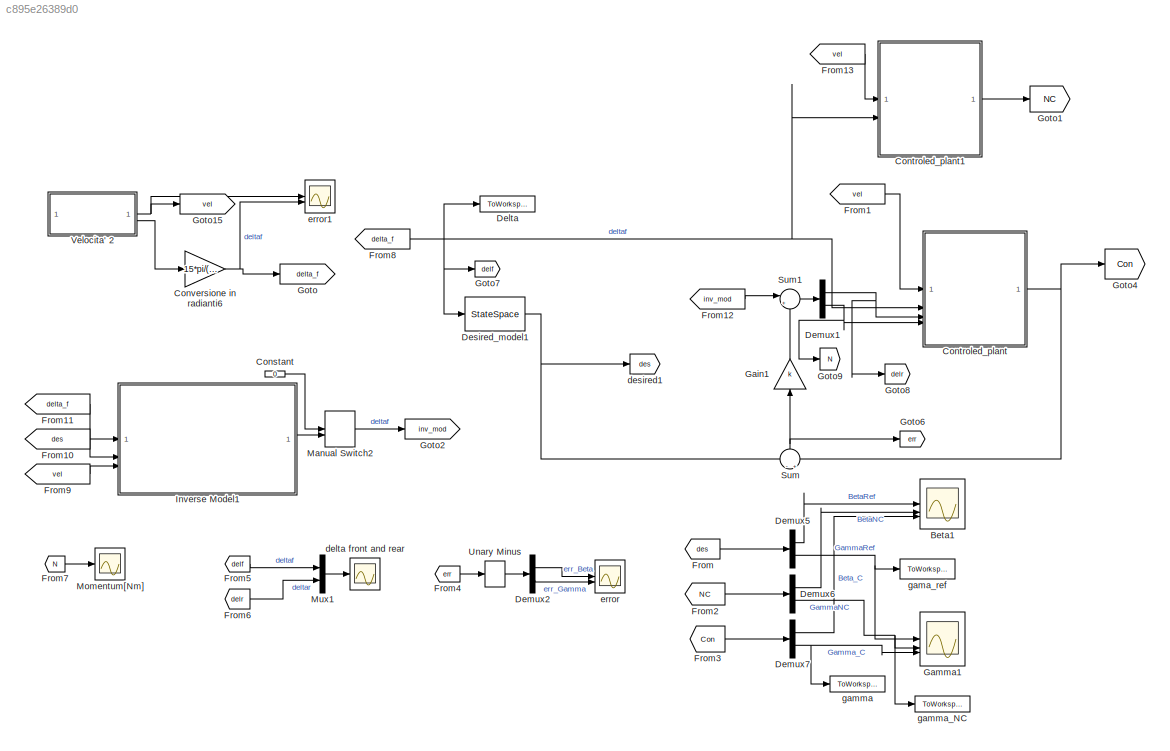
MODEL slx_c895e26389d0
KIND model
CONFIG AbsTol = auto
CONFIG EnableMultiTasking = off
CONFIG FixedStep = auto
CONFIG MaxStep = auto
CONFIG MinStep = auto
CONFIG RelTol = 1e-3
CONFIG SampleTimeConstraint = Unconstrained
CONFIG SolverName = VariableStepAuto
CONFIG StartTime = 0.0
CONFIG StopTime = 30
BLOCK [Scope] Beta1
  Floating = off
  NumInputPorts = 3
  ScopeSpecificationString = Simulink.scopes.TimeScopeBlockCfg('CurrentConfiguration', extmgr.ConfigurationSet(extmgr.Configuration('Core','General UI',true,'FigureColor',[1 1 1]),extmgr.Configuration('Core','Source UI',true),extmgr.Configuration('Sources','WiredSimulink',true,'DataLoggingVariableName','ScopeData1'),extmgr.Configuration('Visuals','Time Domain',true,'SerializedDisplays',{struct('MinYLimReal','-0.00742','MaxYLi...<+1806ch>
BLOCK [Constant] Constant
  Value = 0
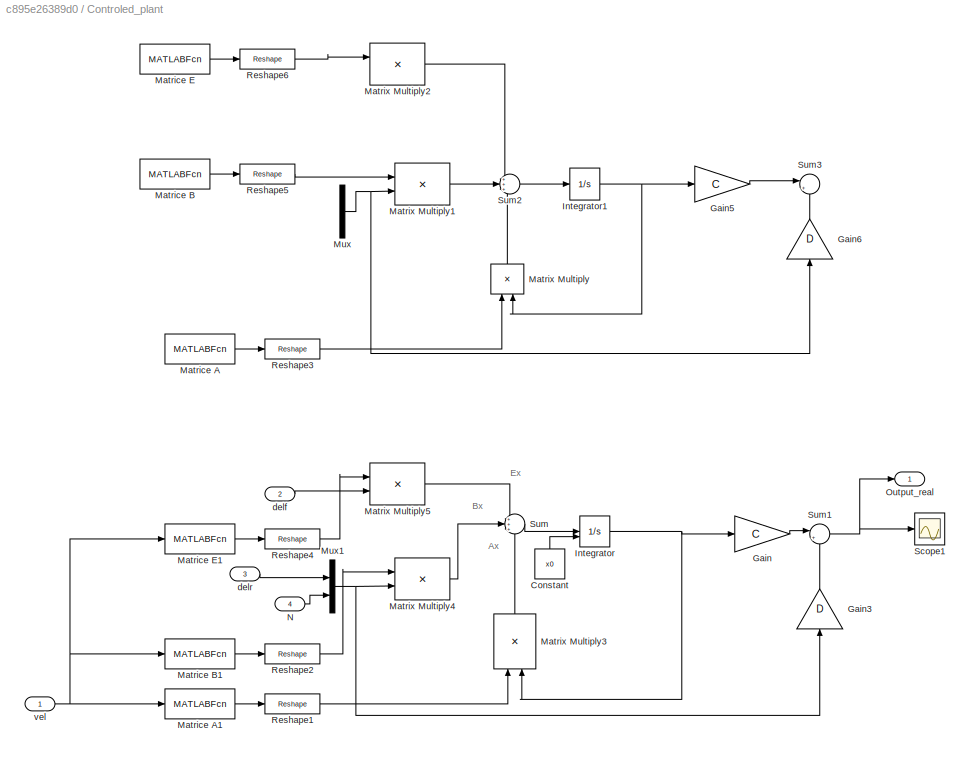
BLOCK [SubSystem] Controled_plant
BLOCK [Constant] Controled_plant/Constant
  NameLocation = right
  Value = x0
BLOCK [Gain] Controled_plant/Gain
  Gain = C
  Multiplication = Matrix(K*u)
BLOCK [Gain] Controled_plant/Gain3
  Gain = D
  Multiplication = Matrix(K*u)
  NameLocation = right
BLOCK [Gain] Controled_plant/Gain5
  Commented = on
  Gain = C
  Multiplication = Matrix(K*u)
BLOCK [Gain] Controled_plant/Gain6
  Commented = on
  Gain = D
  Multiplication = Matrix(K*u)
  NameLocation = right
BLOCK [Integrator] Controled_plant/Integrator
  InitialConditionSource = external
BLOCK [Integrator] Controled_plant/Integrator1
  Commented = on
  InitialCondition = x0
BLOCK [MATLABFcn] Controled_plant/Matrice A
  Commented = on
  MATLABFcn = calc_A(u(1))
BLOCK [MATLABFcn] Controled_plant/Matrice A1
  MATLABFcn = calc_A(u(1))
BLOCK [MATLABFcn] Controled_plant/Matrice B
  Commented = on
  MATLABFcn = calc_B(u(1))
BLOCK [MATLABFcn] Controled_plant/Matrice B1
  MATLABFcn = calc_B(u(1))
BLOCK [MATLABFcn] Controled_plant/Matrice E
  Commented = on
  MATLABFcn = calc_E(u(1))
BLOCK [MATLABFcn] Controled_plant/Matrice E1
  MATLABFcn = calc_E(u(1))
BLOCK [Product] Controled_plant/Matrix Multiply
  Commented = on
  Multiplication = Matrix(*)
  NameLocation = right
BLOCK [Product] Controled_plant/Matrix Multiply1
  Commented = on
  Multiplication = Matrix(*)
BLOCK [Product] Controled_plant/Matrix Multiply2
  Commented = on
  Multiplication = Matrix(*)
BLOCK [Product] Controled_plant/Matrix Multiply3
  Multiplication = Matrix(*)
  NameLocation = right
BLOCK [Product] Controled_plant/Matrix Multiply4
  Multiplication = Matrix(*)
BLOCK [Product] Controled_plant/Matrix Multiply5
  Multiplication = Matrix(*)
BLOCK [Mux] Controled_plant/Mux
  Commented = on
  DisplayOption = bar
  Inputs = 2
BLOCK [Mux] Controled_plant/Mux1
  DisplayOption = bar
  Inputs = 2
BLOCK [Inport] Controled_plant/N
  Port = 4
BLOCK [Outport] Controled_plant/Output_real
BLOCK [Reshape] Controled_plant/Reshape1
  OutputDimensionality = Customize
  OutputDimensions = [2,2]
BLOCK [Reshape] Controled_plant/Reshape2
  OutputDimensionality = Customize
  OutputDimensions = [2,2]
BLOCK [Reshape] Controled_plant/Reshape3
  Commented = on
  OutputDimensionality = Customize
  OutputDimensions = [2,2]
BLOCK [Reshape] Controled_plant/Reshape4
  OutputDimensionality = Customize
  OutputDimensions = [2,1]
BLOCK [Reshape] Controled_plant/Reshape5
  Commented = on
  OutputDimensionality = Customize
  OutputDimensions = [2,2]
BLOCK [Reshape] Controled_plant/Reshape6
  Commented = on
  OutputDimensionality = Customize
  OutputDimensions = [2,1]
BLOCK [Scope] Controled_plant/Scope1
  Floating = off
  NumInputPorts = 1
  ScopeSpecificationString = Simulink.scopes.TimeScopeBlockCfg('CurrentConfiguration', extmgr.ConfigurationSet(extmgr.Configuration('Core','General UI',true),extmgr.Configuration('Core','Source UI',true),extmgr.Configuration('Sources','WiredSimulink',true,'DataLoggingVariableName','ScopeData1'),extmgr.Configuration('Visuals','Time Domain',true,'SerializedDisplays',{struct('MinYLimReal','-0.27207','MaxYLimReal','0.41256','YLab...<+1374ch>
BLOCK [Sum] Controled_plant/Sum
  Inputs = +++
BLOCK [Sum] Controled_plant/Sum1
  Inputs = |++
BLOCK [Sum] Controled_plant/Sum2
  Commented = on
  Inputs = +++
BLOCK [Sum] Controled_plant/Sum3
  Commented = on
  Inputs = |++
BLOCK [Inport] Controled_plant/delf
  Port = 2
BLOCK [Inport] Controled_plant/delr
  Port = 3
BLOCK [Inport] Controled_plant/vel
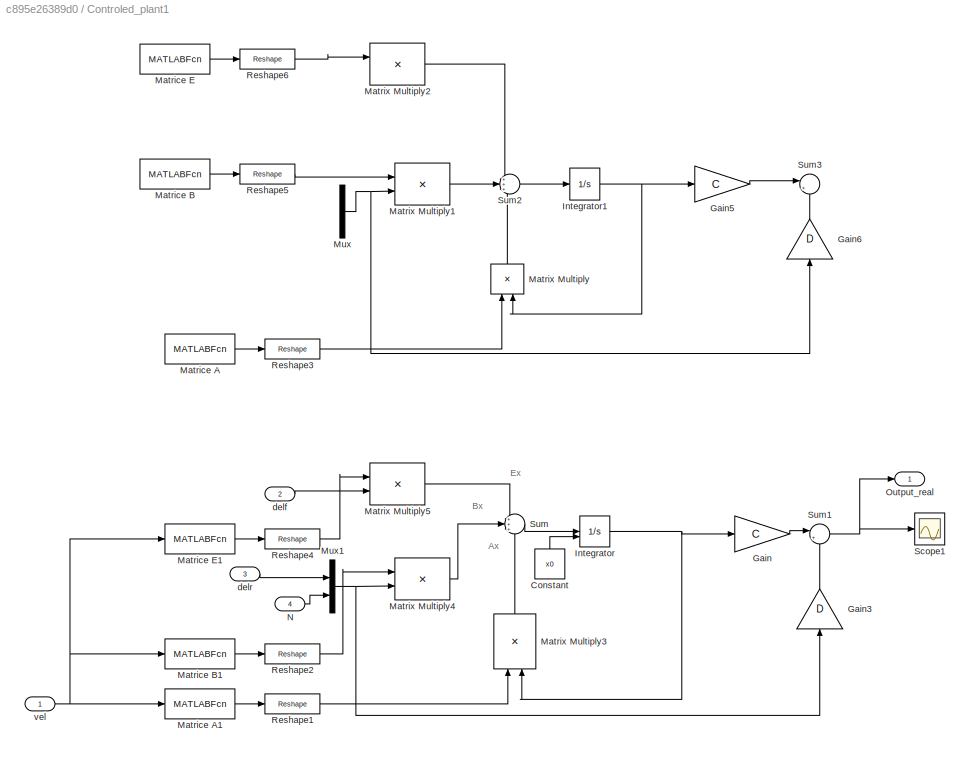
BLOCK [SubSystem] Controled_plant1
BLOCK [Constant] Controled_plant1/Constant
  NameLocation = right
  Value = x0
BLOCK [Gain] Controled_plant1/Gain
  Gain = C
  Multiplication = Matrix(K*u)
BLOCK [Gain] Controled_plant1/Gain3
  Gain = D
  Multiplication = Matrix(K*u)
  NameLocation = right
BLOCK [Gain] Controled_plant1/Gain5
  Commented = on
  Gain = C
  Multiplication = Matrix(K*u)
BLOCK [Gain] Controled_plant1/Gain6
  Commented = on
  Gain = D
  Multiplication = Matrix(K*u)
  NameLocation = right
BLOCK [Integrator] Controled_plant1/Integrator
  InitialConditionSource = external
BLOCK [Integrator] Controled_plant1/Integrator1
  Commented = on
  InitialCondition = x0
BLOCK [MATLABFcn] Controled_plant1/Matrice A
  Commented = on
  MATLABFcn = calc_A(u(1))
BLOCK [MATLABFcn] Controled_plant1/Matrice A1
  MATLABFcn = calc_A(u(1))
BLOCK [MATLABFcn] Controled_plant1/Matrice B
  Commented = on
  MATLABFcn = calc_B(u(1))
BLOCK [MATLABFcn] Controled_plant1/Matrice B1
  MATLABFcn = calc_B(u(1))
BLOCK [MATLABFcn] Controled_plant1/Matrice E
  Commented = on
  MATLABFcn = calc_E(u(1))
BLOCK [MATLABFcn] Controled_plant1/Matrice E1
  MATLABFcn = calc_E(u(1))
BLOCK [Product] Controled_plant1/Matrix Multiply
  Commented = on
  Multiplication = Matrix(*)
  NameLocation = right
BLOCK [Product] Controled_plant1/Matrix Multiply1
  Commented = on
  Multiplication = Matrix(*)
BLOCK [Product] Controled_plant1/Matrix Multiply2
  Commented = on
  Multiplication = Matrix(*)
BLOCK [Product] Controled_plant1/Matrix Multiply3
  Multiplication = Matrix(*)
  NameLocation = right
BLOCK [Product] Controled_plant1/Matrix Multiply4
  Multiplication = Matrix(*)
BLOCK [Product] Controled_plant1/Matrix Multiply5
  Multiplication = Matrix(*)
BLOCK [Mux] Controled_plant1/Mux
  Commented = on
  DisplayOption = bar
  Inputs = 2
BLOCK [Mux] Controled_plant1/Mux1
  DisplayOption = bar
  Inputs = 2
BLOCK [Inport] Controled_plant1/N
  Port = 4
BLOCK [Outport] Controled_plant1/Output_real
BLOCK [Reshape] Controled_plant1/Reshape1
  OutputDimensionality = Customize
  OutputDimensions = [2,2]
BLOCK [Reshape] Controled_plant1/Reshape2
  OutputDimensionality = Customize
  OutputDimensions = [2,2]
BLOCK [Reshape] Controled_plant1/Reshape3
  Commented = on
  OutputDimensionality = Customize
  OutputDimensions = [2,2]
BLOCK [Reshape] Controled_plant1/Reshape4
  OutputDimensionality = Customize
  OutputDimensions = [2,1]
BLOCK [Reshape] Controled_plant1/Reshape5
  Commented = on
  OutputDimensionality = Customize
  OutputDimensions = [2,2]
BLOCK [Reshape] Controled_plant1/Reshape6
  Commented = on
  OutputDimensionality = Customize
  OutputDimensions = [2,1]
BLOCK [Scope] Controled_plant1/Scope1
  Floating = off
  NumInputPorts = 1
  ScopeSpecificationString = Simulink.scopes.TimeScopeBlockCfg('CurrentConfiguration', extmgr.ConfigurationSet(extmgr.Configuration('Core','General UI',true),extmgr.Configuration('Core','Source UI',true),extmgr.Configuration('Sources','WiredSimulink',true,'DataLoggingVariableName','ScopeData1'),extmgr.Configuration('Visuals','Time Domain',true,'SerializedDisplays',{struct('MinYLimReal','-0.27207','MaxYLimReal','0.41256','YLab...<+1374ch>
BLOCK [Sum] Controled_plant1/Sum
  Inputs = +++
BLOCK [Sum] Controled_plant1/Sum1
  Inputs = |++
BLOCK [Sum] Controled_plant1/Sum2
  Commented = on
  Inputs = +++
BLOCK [Sum] Controled_plant1/Sum3
  Commented = on
  Inputs = |++
BLOCK [Inport] Controled_plant1/delf
  Port = 2
BLOCK [Inport] Controled_plant1/delr
  Port = 3
BLOCK [Inport] Controled_plant1/vel
BLOCK [Gain] Conversione in radianti6
  Gain = 15*pi/(180*26.6)
BLOCK [ToWorkspace] Delta
  FixptAsFi = on
  MaxDataPoints = inf
  SampleTime = -1
  SaveFormat = Timeseries
  VariableName = simout
BLOCK [Demux] Demux1
  Outputs = 2
BLOCK [Demux] Demux2
  Outputs = 2
BLOCK [Demux] Demux5
  Outputs = 2
BLOCK [Demux] Demux6
  Outputs = 2
BLOCK [Demux] Demux7
  Outputs = 2
BLOCK [StateSpace] Desired_model1
  A = Ad
  B = Ed
  C = [1,0;0,1]
  D = zeros(2,1)
  InitialCondition = 0
BLOCK [From] From
  GotoTag = des
BLOCK [From] From1
  GotoTag = vel
BLOCK [From] From10
  GotoTag = des
BLOCK [From] From11
  GotoTag = delta_f
BLOCK [From] From12
  GotoTag = inv_mod
BLOCK [From] From13
  GotoTag = vel
BLOCK [From] From2
  GotoTag = NC
BLOCK [From] From3
  GotoTag = Con
BLOCK [From] From4
  GotoTag = err
BLOCK [From] From5
  GotoTag = delf
BLOCK [From] From6
  GotoTag = delr
BLOCK [From] From7
  GotoTag = N
BLOCK [From] From8
  GotoTag = delta_f
BLOCK [From] From9
  GotoTag = vel
BLOCK [Gain] Gain1
  Gain = k
  Multiplication = Matrix(K*u)
  NameLocation = left
BLOCK [Scope] Gamma1
  Floating = off
  NumInputPorts = 3
  ScopeSpecificationString = Simulink.scopes.TimeScopeBlockCfg('CurrentConfiguration', extmgr.ConfigurationSet(extmgr.Configuration('Core','General UI',true,'FigureColor',[1 1 1]),extmgr.Configuration('Core','Source UI',true),extmgr.Configuration('Sources','WiredSimulink',true,'DataLoggingVariableName','ScopeData2'),extmgr.Configuration('Visuals','Time Domain',true,'SerializedDisplays',{struct('MinYLimReal','-0.04617','MaxYLi...<+1800ch>
BLOCK [Goto] Goto
  GotoTag = delta_f
BLOCK [Goto] Goto1
  GotoTag = NC
BLOCK [Goto] Goto15
  GotoTag = vel
BLOCK [Goto] Goto2
  GotoTag = inv_mod
BLOCK [Goto] Goto4
  GotoTag = Con
BLOCK [Goto] Goto6
  GotoTag = err
BLOCK [Goto] Goto7
  GotoTag = delf
BLOCK [Goto] Goto8
  GotoTag = delr
BLOCK [Goto] Goto9
  GotoTag = N
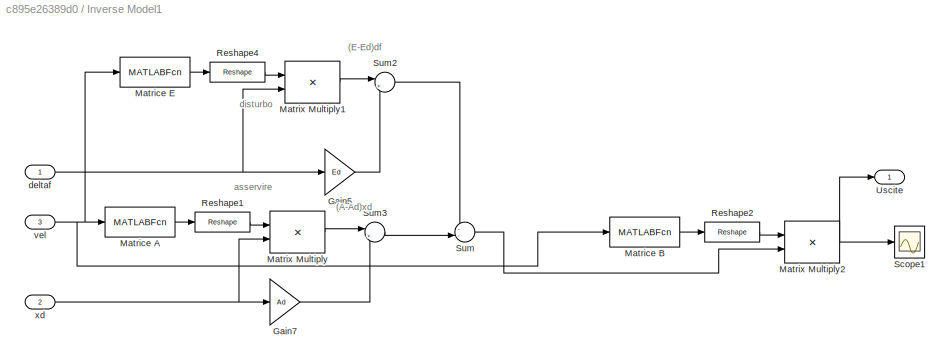
BLOCK [SubSystem] Inverse Model1
BLOCK [Gain] Inverse Model1/Gain5
  Gain = Ed
  Multiplication = Matrix(K*u)
BLOCK [Gain] Inverse Model1/Gain7
  Gain = Ad
  Multiplication = Matrix(K*u)
BLOCK [MATLABFcn] Inverse Model1/Matrice A
  MATLABFcn = calc_A(u(1))
BLOCK [MATLABFcn] Inverse Model1/Matrice B
  MATLABFcn = calc_inv_B(u(1))
BLOCK [MATLABFcn] Inverse Model1/Matrice E
  MATLABFcn = calc_E(u(1))
BLOCK [Product] Inverse Model1/Matrix Multiply
  Multiplication = Matrix(*)
BLOCK [Product] Inverse Model1/Matrix Multiply1
  Multiplication = Matrix(*)
BLOCK [Product] Inverse Model1/Matrix Multiply2
  Multiplication = Matrix(*)
BLOCK [Reshape] Inverse Model1/Reshape1
  OutputDimensionality = Customize
  OutputDimensions = [2,2]
BLOCK [Reshape] Inverse Model1/Reshape2
  OutputDimensionality = Customize
  OutputDimensions = [2,2]
BLOCK [Reshape] Inverse Model1/Reshape4
  OutputDimensionality = Customize
  OutputDimensions = [2,1]
BLOCK [Scope] Inverse Model1/Scope1
  Floating = off
  NumInputPorts = 1
  ScopeSpecificationString = Simulink.scopes.TimeScopeBlockCfg('CurrentConfiguration', extmgr.ConfigurationSet(extmgr.Configuration('Core','General UI',true),extmgr.Configuration('Core','Source UI',true),extmgr.Configuration('Sources','WiredSimulink',true,'DataLoggingVariableName','ScopeData1'),extmgr.Configuration('Visuals','Time Domain',true,'SerializedDisplays',{struct('MinYLimReal','-2938.53975','MaxYLimReal','2937.95788'...<+1566ch>
BLOCK [Sum] Inverse Model1/Sum
  Inputs = --|
BLOCK [Sum] Inverse Model1/Sum2
  Inputs = |+-
BLOCK [Sum] Inverse Model1/Sum3
  Inputs = |+-
BLOCK [Outport] Inverse Model1/Uscite
BLOCK [Inport] Inverse Model1/deltaf
BLOCK [Inport] Inverse Model1/vel
  Port = 3
  PortDimensions = 1
BLOCK [Inport] Inverse Model1/xd
  Port = 2
  PortDimensions = 2
BLOCK [ManualSwitch] Manual Switch2
BLOCK [Scope] Momentum[Nm]
  Floating = off
  NumInputPorts = 1
  ScopeSpecificationString = Simulink.scopes.TimeScopeBlockCfg('CurrentConfiguration', extmgr.ConfigurationSet(extmgr.Configuration('Core','General UI',true,'FigureColor',[1 1 1]),extmgr.Configuration('Core','Source UI',true),extmgr.Configuration('Sources','WiredSimulink',true,'DataLoggingVariableName','ScopeData3'),extmgr.Configuration('Visuals','Time Domain',true,'SerializedDisplays',{struct('MinYLimReal','-1864.35606','Max...<+1662ch>
BLOCK [Mux] Mux1
  DisplayOption = bar
  Inputs = 2
BLOCK [Sum] Sum
  Inputs = -|+
  NameLocation = right
BLOCK [Sum] Sum1
  Inputs = |++
BLOCK [UnaryMinus] Unary Minus
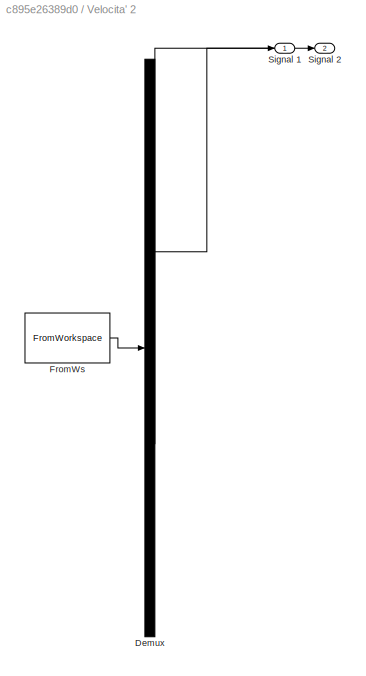
BLOCK [SubSystem] Velocita' 2
  ClipboardFcn = sigbuilder_block('clipboard');
  CloseFcn = sigbuilder_block('close');
  ContinueFcn = sigbuilder_block('continue');
  CopyFcn = sigbuilder_block('copy');
  DeleteFcn = sigbuilder_block('delete');
  LoadFcn = sigbuilder_block('load');
  MaskHideContents = on
  ModelCloseFcn = sigbuilder_block('modelClose');
  NameChangeFcn = sigbuilder_block('namechange');
  OpenFcn = sigbuilder_block('open',[30 192 550.2 343.8 ]);
  PauseFcn = sigbuilder_block('pause');
  PreSaveFcn = sigbuilder_block('preSave');
  StartFcn = sigbuilder_block('start');
  StopFcn = sigbuilder_block('stop');
  Tag = STV Subsys
BLOCK [Demux] Velocita' 2/Demux
  DisplayOption = none
  Outputs = 2
  Tag = STV Demux
BLOCK [FromWorkspace] Velocita' 2/FromWs
  Tag = STV FromWs
  VariableName = tuvar
BLOCK [Outport] Velocita' 2/Signal 1
  Tag = STV Outport
BLOCK [Outport] Velocita' 2/Signal 2
  Port = 2
  Tag = STV Outport
BLOCK [Scope] delta front and rear
  Floating = off
  NumInputPorts = 1
  ScopeSpecificationString = Simulink.scopes.TimeScopeBlockCfg('CurrentConfiguration', extmgr.ConfigurationSet(extmgr.Configuration('Core','General UI',true,'FigureColor',[1 1 1]),extmgr.Configuration('Core','Source UI',true),extmgr.Configuration('Sources','WiredSimulink',true,'DataLoggingVariableName','ScopeData4'),extmgr.Configuration('Visuals','Time Domain',true,'SerializedDisplays',{struct('MinYLimReal','-0.03142','MaxYLi...<+1763ch>
BLOCK [Goto] desired1
  GotoTag = des
BLOCK [Scope] error
  Floating = off
  NumInputPorts = 2
  ScopeSpecificationString = Simulink.scopes.TimeScopeBlockCfg('CurrentConfiguration', extmgr.ConfigurationSet(extmgr.Configuration('Core','General UI',true,'FigureColor',[1 1 1]),extmgr.Configuration('Core','Source UI',true),extmgr.Configuration('Sources','WiredSimulink',true,'DataLoggingVariableName','ScopeData5'),extmgr.Configuration('Visuals','Time Domain',true,'SerializedDisplays',{struct('MinYLimReal','-0.00011','MaxYLi...<+2308ch>
BLOCK [Scope] error1
  Floating = off
  NumInputPorts = 2
  ScopeSpecificationString = Simulink.scopes.TimeScopeBlockCfg('CurrentConfiguration', extmgr.ConfigurationSet(extmgr.Configuration('Core','General UI',true,'FigureColor',[1 1 1]),extmgr.Configuration('Core','Source UI',true),extmgr.Configuration('Sources','WiredSimulink',true,'DataLoggingVariableName','ScopeData2'),extmgr.Configuration('Visuals','Time Domain',true,'SerializedDisplays',{struct('MinYLimReal','45.5','MaxYLimRea...<+2296ch>
BLOCK [ToWorkspace] gama_ref
  FixptAsFi = on
  MaxDataPoints = inf
  SampleTime = -1
  SaveFormat = Timeseries
  VariableName = simout1
BLOCK [ToWorkspace] gamma
  FixptAsFi = on
  MaxDataPoints = inf
  SampleTime = -1
  SaveFormat = Timeseries
  VariableName = simout2
BLOCK [ToWorkspace] gamma_NC
  FixptAsFi = on
  MaxDataPoints = inf
  SampleTime = -1
  SaveFormat = Timeseries
  VariableName = simout3
ANNOTATION Controled_plant: Ax
ANNOTATION Controled_plant: Bx
ANNOTATION Controled_plant: Ex
ANNOTATION Controled_plant1: Ax
ANNOTATION Controled_plant1: Bx
ANNOTATION Controled_plant1: Ex
ANNOTATION Inverse Model1: (A-Ad)xd
ANNOTATION Inverse Model1: (E-Ed)df
ANNOTATION Inverse Model1: asservire
ANNOTATION Inverse Model1: disturbo
LINE Constant:1 -> Manual Switch2:1
LINE Controled_plant/Constant:1 -> Controled_plant/Integrator:2
LINE Controled_plant/Gain3:1 -> Controled_plant/Sum1:2
LINE Controled_plant/Gain5:1 -> Controled_plant/Sum3:1
LINE Controled_plant/Gain6:1 -> Controled_plant/Sum3:2
LINE Controled_plant/Gain:1 -> Controled_plant/Sum1:1
NET Controled_plant/Integrator1:1 -> Controled_plant/Gain5:1, Controled_plant/Matrix Multiply:2
NET Controled_plant/Integrator:1 -> Controled_plant/Gain:1, Controled_plant/Matrix Multiply3:2
LINE Controled_plant/Matrice A1:1 -> Controled_plant/Reshape1:1
LINE Controled_plant/Matrice A:1 -> Controled_plant/Reshape3:1
LINE Controled_plant/Matrice B1:1 -> Controled_plant/Reshape2:1
LINE Controled_plant/Matrice B:1 -> Controled_plant/Reshape5:1
LINE Controled_plant/Matrice E1:1 -> Controled_plant/Reshape4:1
LINE Controled_plant/Matrice E:1 -> Controled_plant/Reshape6:1
LINE Controled_plant/Matrix Multiply1:1 -> Controled_plant/Sum2:2
LINE Controled_plant/Matrix Multiply2:1 -> Controled_plant/Sum2:1
LINE Controled_plant/Matrix Multiply3:1 -> Controled_plant/Sum:3
LINE Controled_plant/Matrix Multiply4:1 -> Controled_plant/Sum:2
LINE Controled_plant/Matrix Multiply5:1 -> Controled_plant/Sum:1
LINE Controled_plant/Matrix Multiply:1 -> Controled_plant/Sum2:3
NET Controled_plant/Mux1:1 -> Controled_plant/Gain3:1, Controled_plant/Matrix Multiply4:2
NET Controled_plant/Mux:1 -> Controled_plant/Gain6:1, Controled_plant/Matrix Multiply1:2
LINE Controled_plant/N:1 -> Controled_plant/Mux1:2
LINE Controled_plant/Reshape1:1 -> Controled_plant/Matrix Multiply3:1
LINE Controled_plant/Reshape2:1 -> Controled_plant/Matrix Multiply4:1
LINE Controled_plant/Reshape3:1 -> Controled_plant/Matrix Multiply:1
LINE Controled_plant/Reshape4:1 -> Controled_plant/Matrix Multiply5:1
LINE Controled_plant/Reshape5:1 -> Controled_plant/Matrix Multiply1:1
LINE Controled_plant/Reshape6:1 -> Controled_plant/Matrix Multiply2:1
NET Controled_plant/Sum1:1 -> Controled_plant/Output_real:1, Controled_plant/Scope1:1
LINE Controled_plant/Sum2:1 -> Controled_plant/Integrator1:1
LINE Controled_plant/Sum:1 -> Controled_plant/Integrator:1
LINE Controled_plant/delf:1 -> Controled_plant/Matrix Multiply5:2
LINE Controled_plant/delr:1 -> Controled_plant/Mux1:1
NET Controled_plant/vel:1 -> Controled_plant/Matrice A1:1, Controled_plant/Matrice B1:1, Controled_plant/Matrice E1:1
LINE Controled_plant1/Constant:1 -> Controled_plant1/Integrator:2
LINE Controled_plant1/Gain3:1 -> Controled_plant1/Sum1:2
LINE Controled_plant1/Gain5:1 -> Controled_plant1/Sum3:1
LINE Controled_plant1/Gain6:1 -> Controled_plant1/Sum3:2
LINE Controled_plant1/Gain:1 -> Controled_plant1/Sum1:1
NET Controled_plant1/Integrator1:1 -> Controled_plant1/Gain5:1, Controled_plant1/Matrix Multiply:2
NET Controled_plant1/Integrator:1 -> Controled_plant1/Gain:1, Controled_plant1/Matrix Multiply3:2
LINE Controled_plant1/Matrice A1:1 -> Controled_plant1/Reshape1:1
LINE Controled_plant1/Matrice A:1 -> Controled_plant1/Reshape3:1
LINE Controled_plant1/Matrice B1:1 -> Controled_plant1/Reshape2:1
LINE Controled_plant1/Matrice B:1 -> Controled_plant1/Reshape5:1
LINE Controled_plant1/Matrice E1:1 -> Controled_plant1/Reshape4:1
LINE Controled_plant1/Matrice E:1 -> Controled_plant1/Reshape6:1
LINE Controled_plant1/Matrix Multiply1:1 -> Controled_plant1/Sum2:2
LINE Controled_plant1/Matrix Multiply2:1 -> Controled_plant1/Sum2:1
LINE Controled_plant1/Matrix Multiply3:1 -> Controled_plant1/Sum:3
LINE Controled_plant1/Matrix Multiply4:1 -> Controled_plant1/Sum:2
LINE Controled_plant1/Matrix Multiply5:1 -> Controled_plant1/Sum:1
LINE Controled_plant1/Matrix Multiply:1 -> Controled_plant1/Sum2:3
NET Controled_plant1/Mux1:1 -> Controled_plant1/Gain3:1, Controled_plant1/Matrix Multiply4:2
NET Controled_plant1/Mux:1 -> Controled_plant1/Gain6:1, Controled_plant1/Matrix Multiply1:2
LINE Controled_plant1/N:1 -> Controled_plant1/Mux1:2
LINE Controled_plant1/Reshape1:1 -> Controled_plant1/Matrix Multiply3:1
LINE Controled_plant1/Reshape2:1 -> Controled_plant1/Matrix Multiply4:1
LINE Controled_plant1/Reshape3:1 -> Controled_plant1/Matrix Multiply:1
LINE Controled_plant1/Reshape4:1 -> Controled_plant1/Matrix Multiply5:1
LINE Controled_plant1/Reshape5:1 -> Controled_plant1/Matrix Multiply1:1
LINE Controled_plant1/Reshape6:1 -> Controled_plant1/Matrix Multiply2:1
NET Controled_plant1/Sum1:1 -> Controled_plant1/Output_real:1, Controled_plant1/Scope1:1
LINE Controled_plant1/Sum2:1 -> Controled_plant1/Integrator1:1
LINE Controled_plant1/Sum:1 -> Controled_plant1/Integrator:1
LINE Controled_plant1/delf:1 -> Controled_plant1/Matrix Multiply5:2
LINE Controled_plant1/delr:1 -> Controled_plant1/Mux1:1
NET Controled_plant1/vel:1 -> Controled_plant1/Matrice A1:1, Controled_plant1/Matrice B1:1, Controled_plant1/Matrice E1:1
LINE Controled_plant1:1 -> Goto1:1
NET Controled_plant:1 -> Goto4:1, Sum:2
NET Conversione in radianti6:1 -> Goto:1, error1:2
NET Demux1:1 -> Controled_plant:3, Goto8:1
NET Demux1:2 -> Controled_plant:4, Goto9:1
LINE Demux2:1 -> error:1
LINE Demux2:2 -> error:2
LINE Demux5:1 -> Beta1:1
NET Demux5:2 -> Gamma1:1, gama_ref:1
LINE Demux6:1 -> Beta1:2
NET Demux6:2 -> Gamma1:2, gamma_NC:1
LINE Demux7:1 -> Beta1:3
NET Demux7:2 -> Gamma1:3, gamma:1
NET Desired_model1:1 -> Sum:1, desired1:1
LINE From10:1 -> Inverse Model1:2
LINE From11:1 -> Inverse Model1:1
LINE From12:1 -> Sum1:1
LINE From13:1 -> Controled_plant1:1
LINE From1:1 -> Controled_plant:1
LINE From2:1 -> Demux6:1
LINE From3:1 -> Demux7:1
LINE From4:1 -> Unary Minus:1
LINE From5:1 -> Mux1:1
LINE From6:1 -> Mux1:2
LINE From7:1 -> Momentum[Nm]:1
NET From8:1 -> Controled_plant1:2, Controled_plant:2, Delta:1, Desired_model1:1, Goto7:1
LINE From9:1 -> Inverse Model1:3
LINE From:1 -> Demux5:1
LINE Gain1:1 -> Sum1:2
LINE Inverse Model1/Gain5:1 -> Inverse Model1/Sum2:2
LINE Inverse Model1/Gain7:1 -> Inverse Model1/Sum3:2
LINE Inverse Model1/Matrice A:1 -> Inverse Model1/Reshape1:1
LINE Inverse Model1/Matrice B:1 -> Inverse Model1/Reshape2:1
LINE Inverse Model1/Matrice E:1 -> Inverse Model1/Reshape4:1
LINE Inverse Model1/Matrix Multiply1:1 -> Inverse Model1/Sum2:1
NET Inverse Model1/Matrix Multiply2:1 -> Inverse Model1/Scope1:1, Inverse Model1/Uscite:1
LINE Inverse Model1/Matrix Multiply:1 -> Inverse Model1/Sum3:1
LINE Inverse Model1/Reshape1:1 -> Inverse Model1/Matrix Multiply:1
LINE Inverse Model1/Reshape2:1 -> Inverse Model1/Matrix Multiply2:1
LINE Inverse Model1/Reshape4:1 -> Inverse Model1/Matrix Multiply1:1
LINE Inverse Model1/Sum2:1 -> Inverse Model1/Sum:1
LINE Inverse Model1/Sum3:1 -> Inverse Model1/Sum:2
LINE Inverse Model1/Sum:1 -> Inverse Model1/Matrix Multiply2:2
NET Inverse Model1/deltaf:1 -> Inverse Model1/Gain5:1, Inverse Model1/Matrix Multiply1:2
NET Inverse Model1/vel:1 -> Inverse Model1/Matrice A:1, Inverse Model1/Matrice B:1, Inverse Model1/Matrice E:1
NET Inverse Model1/xd:1 -> Inverse Model1/Gain7:1, Inverse Model1/Matrix Multiply:2
LINE Inverse Model1:1 -> Manual Switch2:2
LINE Manual Switch2:1 -> Goto2:1
LINE Mux1:1 -> delta front and rear:1
LINE Sum1:1 -> Demux1:1
NET Sum:1 -> Gain1:1, Goto6:1
LINE Unary Minus:1 -> Demux2:1
NET Velocita' 2:1 -> Goto15:1, error1:1
LINE Velocita' 2:2 -> Conversione in radianti6:1
note: NET lines group one-source signal fan-out (src -> all destinations, sorted); 1:1 wires keep LINE
